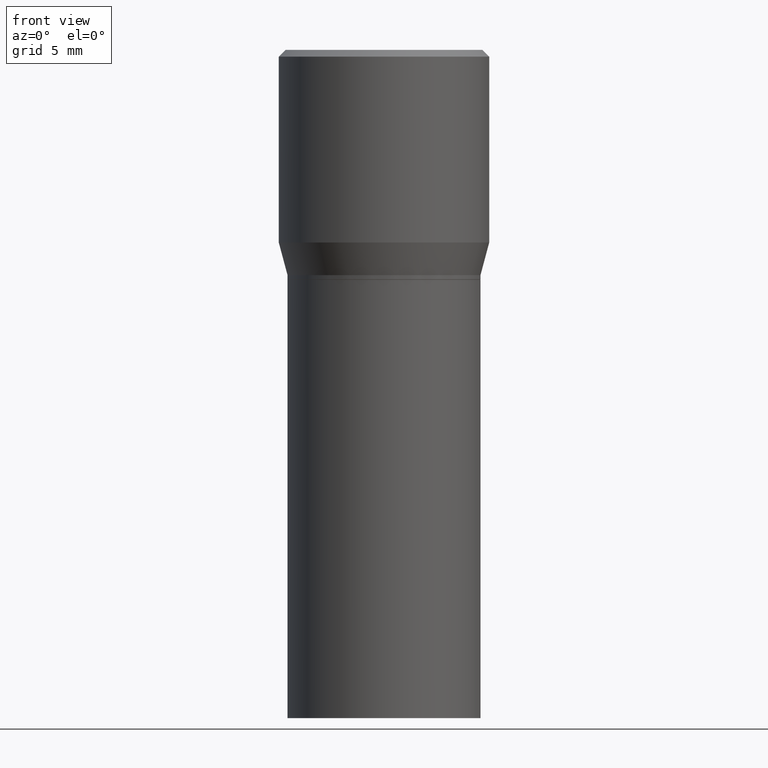
[diagram: clean part render]
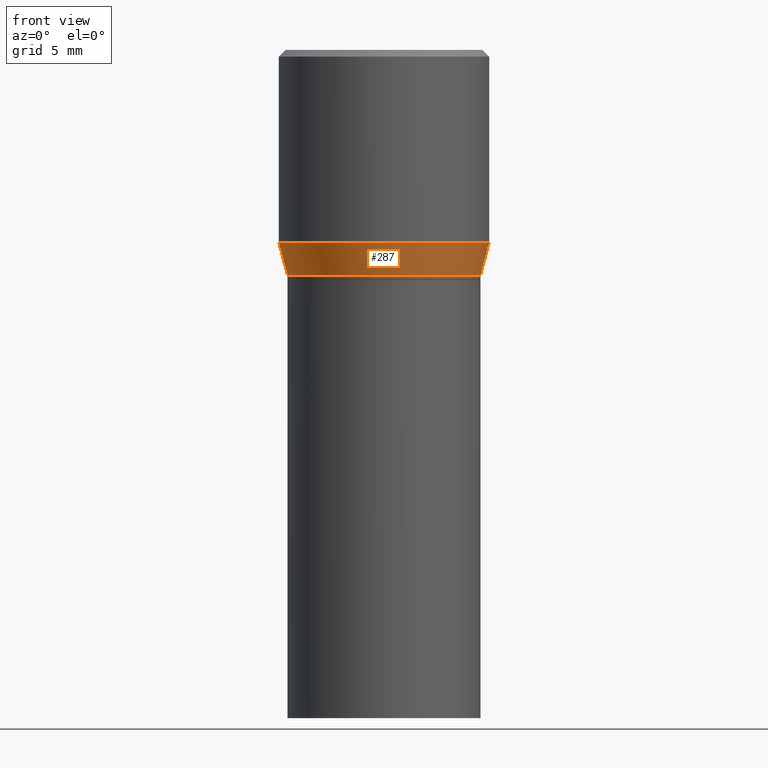
[diagram: same view with one face highlighted and labeled with its STEP entity id]
A machine part, front view. The second image highlights one B-rep face of the part: STEP entity #287.
In plain terms, the highlighted conical surface has half-angle 15 deg.
Its self-contained STEP definition (entity closure, byte-faithful):
#2 = AXIS2_PLACEMENT_3D ( 'NONE', #158, #240, #56 ) ;
#12 = DIRECTION ( 'NONE',  ( 0.2588190451025206840, 1.565188264969626504E-15, 0.9659258262890682012 ) ) ;
#20 = CARTESIAN_POINT ( 'NONE',  ( 0.2361999999999999933, -3.158970817530236235E-15, -0.4323652016312719004 ) ) ;
#22 = CARTESIAN_POINT ( 'NONE',  ( 0.2165500000000000480, -3.277802680905940530E-15, -0.5057000000000001494 ) ) ;
#56 = DIRECTION ( 'NONE',  ( 1.000000000000000000, -6.982962677686268288E-15, 0.000000000000000000 ) ) ;
#58 = CARTESIAN_POINT ( 'NONE',  ( 0.2165500000000000480, -3.277802680905940530E-15, -0.5057000000000001494 ) ) ;
#62 = AXIS2_PLACEMENT_3D ( 'NONE', #191, #197, #236 ) ;
#90 = CARTESIAN_POINT ( 'NONE',  ( -0.2165500000000000480, -2.912745497993258696E-17, -0.5057000000000001494 ) ) ;
#102 = EDGE_LOOP ( 'NONE', ( #408, #375, #378, #157 ) ) ;
#119 = VECTOR ( 'NONE', #12, 39.37007874015748854 ) ;
#131 = VERTEX_POINT ( 'NONE', #90 ) ;
#144 = DIRECTION ( 'NONE',  ( 1.000000000000000000, -6.982962677686266711E-15, 0.000000000000000000 ) ) ;
#148 = VERTEX_POINT ( 'NONE', #58 ) ;
#157 = ORIENTED_EDGE ( 'NONE', *, *, #316, .F. ) ;
#158 = CARTESIAN_POINT ( 'NONE',  ( 1.057335613469222325E-29, -1.509595033060739709E-15, -0.4323652016312719004 ) ) ;
#181 = VERTEX_POINT ( 'NONE', #391 ) ;
#191 = CARTESIAN_POINT ( 'NONE',  ( 1.236673575287824021E-29, -1.765642113052979313E-15, -0.5057000000000001494 ) ) ;
#197 = DIRECTION ( 'NONE',  ( -2.445468806185136597E-29, 3.491481338843145583E-15, 1.000000000000000000 ) ) ;
#202 = CIRCLE ( 'NONE', #62, 0.2165500000000000480 ) ;
#209 = CONICAL_SURFACE ( 'NONE', #420, 0.2165500000000000480, 0.2617993877991494078 ) ;
#236 = DIRECTION ( 'NONE',  ( 1.000000000000000000, -6.982962677686266711E-15, 0.000000000000000000 ) ) ;
#240 = DIRECTION ( 'NONE',  ( -2.445468806185136597E-29, 3.491481338843145583E-15, 1.000000000000000000 ) ) ;
#248 = CARTESIAN_POINT ( 'NONE',  ( 1.236673575287824021E-29, -1.765642113052979313E-15, -0.5057000000000001494 ) ) ;
#256 = VERTEX_POINT ( 'NONE', #20 ) ;
#287 = ADVANCED_FACE ( 'NONE', ( #347 ), #209, .T. ) ;
#297 = LINE ( 'NONE', #22, #119 ) ;
#316 = EDGE_CURVE ( 'NONE', #181, #256, #428, .T. ) ;
#347 = FACE_OUTER_BOUND ( 'NONE', #102, .T. ) ;
#359 = EDGE_CURVE ( 'NONE', #131, #148, #202, .T. ) ;
#375 = ORIENTED_EDGE ( 'NONE', *, *, #359, .T. ) ;
#378 = ORIENTED_EDGE ( 'NONE', *, *, #400, .T. ) ;
#387 = DIRECTION ( 'NONE',  ( -2.445468806185136597E-29, 3.491481338843145583E-15, 1.000000000000000000 ) ) ;
#391 = CARTESIAN_POINT ( 'NONE',  ( -0.2361999999999999933, 1.687069088046168326E-16, -0.4323652016312719004 ) ) ;
#400 = EDGE_CURVE ( 'NONE', #148, #256, #297, .T. ) ;
#408 = ORIENTED_EDGE ( 'NONE', *, *, #436, .F. ) ;
#420 = AXIS2_PLACEMENT_3D ( 'NONE', #248, #387, #144 ) ;
#428 = CIRCLE ( 'NONE', #2, 0.2361999999999999933 ) ;
#429 = DIRECTION ( 'NONE',  ( -0.2588190451025206840, 5.211531920934545520E-15, 0.9659258262890682012 ) ) ;
#436 = EDGE_CURVE ( 'NONE', #131, #181, #458, .T. ) ;
#455 = CARTESIAN_POINT ( 'NONE',  ( -0.2165500000000000480, -2.269618187644819696E-16, -0.5057000000000001494 ) ) ;
#458 = LINE ( 'NONE', #455, #464 ) ;
#464 = VECTOR ( 'NONE', #429, 39.37007874015748854 ) ;